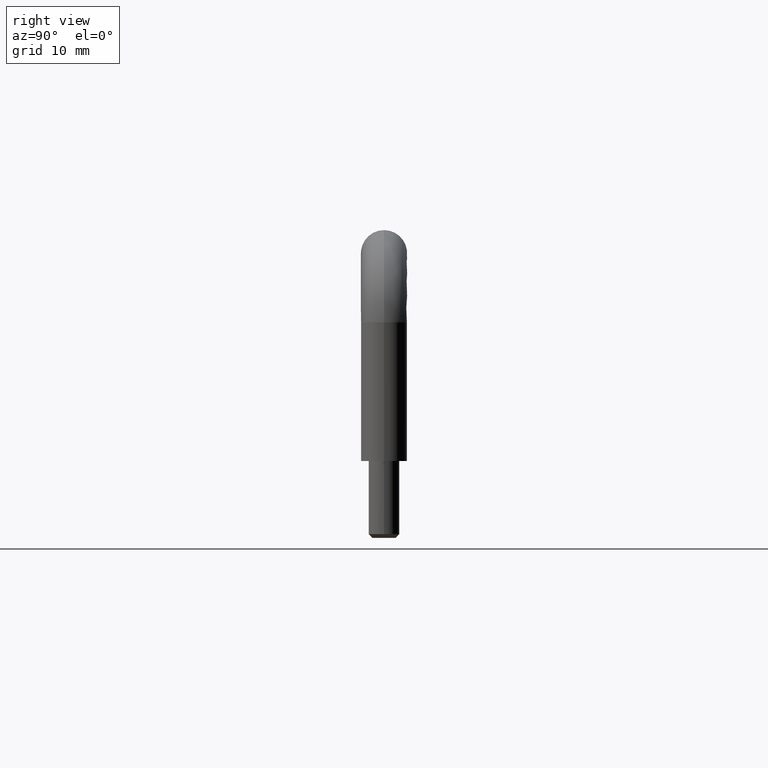
[diagram: clean part render]
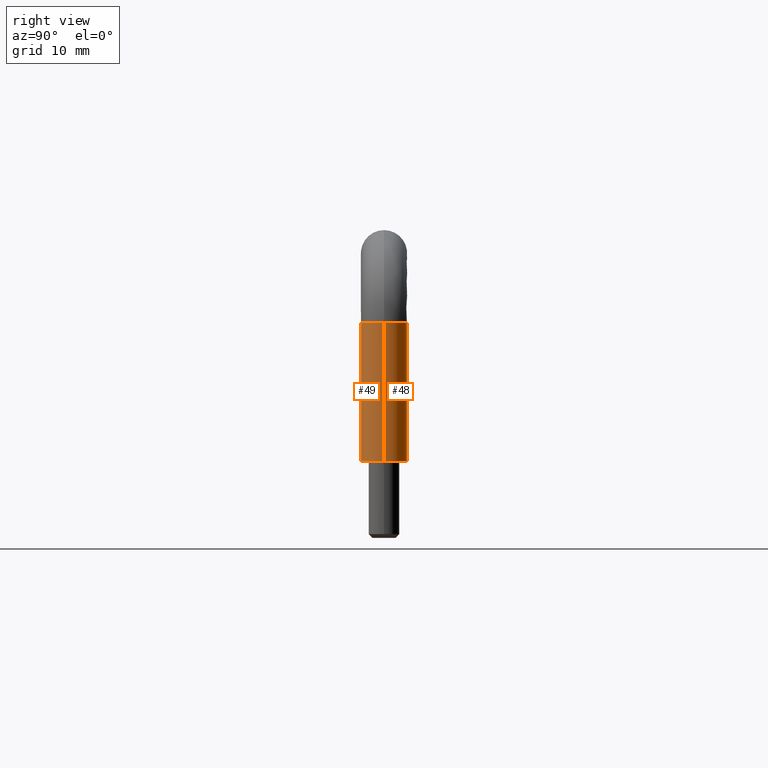
[diagram: same view with one multi-face feature highlighted, each face labeled with its STEP entity id]
A machine part, right view. The highlighted faces form ONE feature: a constant-radius fillet chain: 2 tangent blend faces with common blend radius 3 mm. The faces share edges in the B-rep.
Their STEP definitions:
[1] entity #49 (Cylinder):
#49=ADVANCED_FACE('',(#155),#154,.T.);
#154=CYLINDRICAL_SURFACE('',#514,3.00000000000E+00);
#155=FACE_OUTER_BOUND('',#515,.T.);
#511=CARTESIAN_POINT('',(3.99999999999E+01,0.00000000000E+00,-1.50000000000E+01));
#512=DIRECTION('',(0.00000000000E+00,-0.00000000000E+00,1.00000000000E+00));
#513=DIRECTION('',(1.00000000000E+00,-0.00000000000E+00,-0.00000000000E+00));
#514=AXIS2_PLACEMENT_3D('',#511,#512,#513);
#515=EDGE_LOOP('',(#632,#633,#634,#635));
#632=ORIENTED_EDGE('',*,*,#695,.F.);
#633=ORIENTED_EDGE('',*,*,#708,.T.);
#634=ORIENTED_EDGE('',*,*,#699,.F.);
#635=ORIENTED_EDGE('',*,*,#709,.F.);
#695=EDGE_CURVE('',#797,#796,#804,.T.);
#699=EDGE_CURVE('',#755,#754,#830,.T.);
#708=EDGE_CURVE('',#797,#754,#890,.T.);
#709=EDGE_CURVE('',#796,#755,#896,.T.);
#754=VERTEX_POINT('',#1023);
#755=VERTEX_POINT('',#1024);
#796=VERTEX_POINT('',#1054);
#797=VERTEX_POINT('',#1055);
#804=CIRCLE('',#1063,3.00000000000E+00);
#830=CIRCLE('',#1081,3.00000000000E+00);
#890=(BOUNDED_CURVE() B_SPLINE_CURVE(1,(#1120,#1121),.UNSPECIFIED.,.F.,.F.) B_SPLINE_CURVE_WITH_KNOTS((2,2),(8.33333328360E-02,9.16666665505E-01),.UNSPECIFIED.) CURVE() GEOMETRIC_REPRESENTATION_ITEM() RATIONAL_B_SPLINE_CURVE((1.00000000000E+00,1.00000000000E+00)) REPRESENTATION_ITEM('') );
#896=(BOUNDED_CURVE() B_SPLINE_CURVE(1,(#1122,#1123),.UNSPECIFIED.,.F.,.F.) B_SPLINE_CURVE_WITH_KNOTS((2,2),(8.33333333333E-02,9.16666666667E-01),.UNSPECIFIED.) CURVE() GEOMETRIC_REPRESENTATION_ITEM() RATIONAL_B_SPLINE_CURVE((7.50000000000E-01,7.50000000000E-01)) REPRESENTATION_ITEM('') );
#1023=CARTESIAN_POINT('',(4.29999999999E+01,0.00000000000E+00,-6.00000000000E+00));
#1024=CARTESIAN_POINT('',(3.69999999999E+01,-1.48029736617E-16,-6.00000000000E+00));
#1054=CARTESIAN_POINT('',(3.69999999999E+01,-3.67381906147E-16,-2.40000000000E+01));
#1055=CARTESIAN_POINT('',(4.29999999999E+01,-2.96059473233E-16,-2.40000000000E+01));
#1060=CARTESIAN_POINT('',(3.99999999999E+01,0.00000000000E+00,-2.40000000000E+01));
#1061=DIRECTION('',(0.00000000000E+00,0.00000000000E+00,-1.00000000000E+00));
#1062=DIRECTION('',(-1.00000000000E+00,-0.00000000000E+00,-0.00000000000E+00));
#1063=AXIS2_PLACEMENT_3D('',#1060,#1061,#1062);
#1078=CARTESIAN_POINT('',(3.99999999999E+01,0.00000000000E+00,-6.00000000000E+00));
#1079=DIRECTION('',(0.00000000000E+00,0.00000000000E+00,1.00000000000E+00));
#1080=DIRECTION('',(1.00000000000E+00,4.93432455390E-17,-0.00000000000E+00));
#1081=AXIS2_PLACEMENT_3D('',#1078,#1079,#1080);
#1120=CARTESIAN_POINT('',(4.29999999999E+01,0.00000000000E+00,-2.40000000107E+01));
#1121=CARTESIAN_POINT('',(4.29999999999E+01,0.00000000000E+00,-6.00000002510E+00));
#1122=CARTESIAN_POINT('',(3.69999999999E+01,-1.48029736617E-16,-2.40000000000E+01));
#1123=CARTESIAN_POINT('',(3.69999999999E+01,-1.48029736617E-16,-6.00000000000E+00));
[2] entity #48 (Cylinder):
#48=ADVANCED_FACE('',(#145),#144,.T.);
#144=CYLINDRICAL_SURFACE('',#509,3.00000000000E+00);
#145=FACE_OUTER_BOUND('',#510,.T.);
#506=CARTESIAN_POINT('',(3.99999999999E+01,0.00000000000E+00,-1.50000000000E+01));
#507=DIRECTION('',(0.00000000000E+00,-0.00000000000E+00,1.00000000000E+00));
#508=DIRECTION('',(1.00000000000E+00,-0.00000000000E+00,-0.00000000000E+00));
#509=AXIS2_PLACEMENT_3D('',#506,#507,#508);
#510=EDGE_LOOP('',(#628,#629,#630,#631));
#628=ORIENTED_EDGE('',*,*,#688,.F.);
#629=ORIENTED_EDGE('',*,*,#708,.F.);
#630=ORIENTED_EDGE('',*,*,#694,.F.);
#631=ORIENTED_EDGE('',*,*,#709,.T.);
#688=EDGE_CURVE('',#754,#755,#756,.T.);
#694=EDGE_CURVE('',#796,#797,#798,.T.);
#708=EDGE_CURVE('',#797,#754,#890,.T.);
#709=EDGE_CURVE('',#796,#755,#896,.T.);
#754=VERTEX_POINT('',#1023);
#755=VERTEX_POINT('',#1024);
#756=CIRCLE('',#1028,3.00000000000E+00);
#796=VERTEX_POINT('',#1054);
#797=VERTEX_POINT('',#1055);
#798=CIRCLE('',#1059,3.00000000000E+00);
#890=(BOUNDED_CURVE() B_SPLINE_CURVE(1,(#1120,#1121),.UNSPECIFIED.,.F.,.F.) B_SPLINE_CURVE_WITH_KNOTS((2,2),(8.33333328360E-02,9.16666665505E-01),.UNSPECIFIED.) CURVE() GEOMETRIC_REPRESENTATION_ITEM() RATIONAL_B_SPLINE_CURVE((1.00000000000E+00,1.00000000000E+00)) REPRESENTATION_ITEM('') );
#896=(BOUNDED_CURVE() B_SPLINE_CURVE(1,(#1122,#1123),.UNSPECIFIED.,.F.,.F.) B_SPLINE_CURVE_WITH_KNOTS((2,2),(8.33333333333E-02,9.16666666667E-01),.UNSPECIFIED.) CURVE() GEOMETRIC_REPRESENTATION_ITEM() RATIONAL_B_SPLINE_CURVE((7.50000000000E-01,7.50000000000E-01)) REPRESENTATION_ITEM('') );
#1023=CARTESIAN_POINT('',(4.29999999999E+01,0.00000000000E+00,-6.00000000000E+00));
#1024=CARTESIAN_POINT('',(3.69999999999E+01,-1.48029736617E-16,-6.00000000000E+00));
#1025=CARTESIAN_POINT('',(3.99999999999E+01,0.00000000000E+00,-6.00000000000E+00));
#1026=DIRECTION('',(-0.00000000000E+00,0.00000000000E+00,1.00000000000E+00));
#1027=DIRECTION('',(-1.00000000000E+00,-0.00000000000E+00,-0.00000000000E+00));
#1028=AXIS2_PLACEMENT_3D('',#1025,#1026,#1027);
#1054=CARTESIAN_POINT('',(3.69999999999E+01,-3.67381906147E-16,-2.40000000000E+01));
#1055=CARTESIAN_POINT('',(4.29999999999E+01,-2.96059473233E-16,-2.40000000000E+01));
#1056=CARTESIAN_POINT('',(3.99999999999E+01,0.00000000000E+00,-2.40000000000E+01));
#1057=DIRECTION('',(0.00000000000E+00,0.00000000000E+00,-1.00000000000E+00));
#1058=DIRECTION('',(-1.00000000000E+00,-0.00000000000E+00,-0.00000000000E+00));
#1059=AXIS2_PLACEMENT_3D('',#1056,#1057,#1058);
#1120=CARTESIAN_POINT('',(4.29999999999E+01,0.00000000000E+00,-2.40000000107E+01));
#1121=CARTESIAN_POINT('',(4.29999999999E+01,0.00000000000E+00,-6.00000002510E+00));
#1122=CARTESIAN_POINT('',(3.69999999999E+01,-1.48029736617E-16,-2.40000000000E+01));
#1123=CARTESIAN_POINT('',(3.69999999999E+01,-1.48029736617E-16,-6.00000000000E+00));